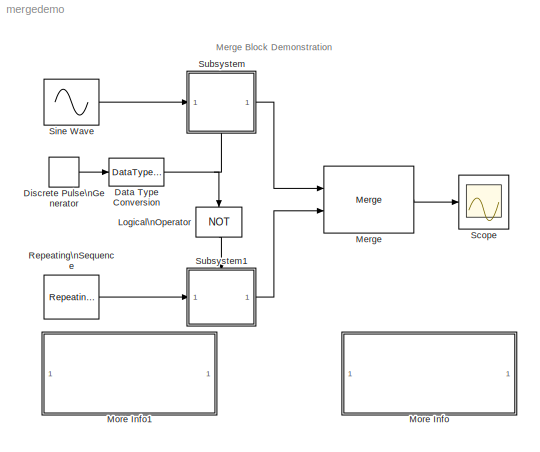
MODEL mergedemo
KIND model
BLOCK [DataTypeConversion] Data Type Conversion
  OutDataTypeMode = boolean
BLOCK [DiscretePulseGenerator] Discrete Pulse\nGenerator
  Ports = [0, 1]
  SampleTime = 5
BLOCK [Logic] Logical\nOperator
  Inputs = 1
  Operator = NOT
  Ports = [1, 1]
BLOCK [Merge] Merge
  Ports = [2, 1]
BLOCK [SubSystem] More Info
  MaskDisplay = disp('Double click here \\nfor a step-by-step\\ntutorial on this model')
  MaskIconFrame = on
  MaskIconOpaque = on
  MaskIconRotate = none
  MaskIconUnits = autoscale
  MinAlgLoopOccurrences = off
  OpenFcn = mergedemoscript
  Ports = []
  PropExecContextAcrossSSBoundary = on
  RTWSystemCode = Auto
  TreatAsAtomicUnit = off
BLOCK [SubSystem] More Info1
  MaskDisplay = disp('Double click\\nhere for general\\nSimulink Help')
  MaskIconFrame = on
  MaskIconOpaque = on
  MaskIconRotate = none
  MaskIconUnits = autoscale
  MinAlgLoopOccurrences = off
  OpenFcn = simcad(bdroot);
  Ports = []
  PropExecContextAcrossSSBoundary = on
  RTWSystemCode = Auto
  TreatAsAtomicUnit = off
BLOCK [Reference] Repeating\nSequence  REF=simulink/Sources/Repeating\nSequence
  Ports = [0, 1]
  ShowPortLabels = on
  SourceBlock = simulink/Sources/Repeating\nSequence
  SourceType = Repeating table
  rep_seq_t = [0 1]
  rep_seq_y = [0 2]
BLOCK [Scope] Scope
  DataFormat = Array
  NumInputPorts = 1
  Ports = [1]
  TickLabels = on
  TimeRange = 20
  YMax = 2
  YMin = -1.5
BLOCK [Sin] Sine Wave
  Frequency = pi
  Ports = [0, 1]
  SampleTime = 0
  SineType = Time based
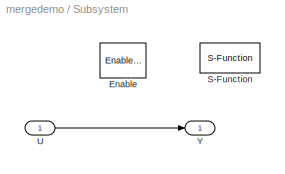
BLOCK [SubSystem] Subsystem
  MinAlgLoopOccurrences = off
  Ports = [1, 1, 1]
  PropExecContextAcrossSSBoundary = on
  RTWSystemCode = Auto
  Tag = MergeExample
  TreatAsAtomicUnit = on
BLOCK [EnablePort] Subsystem/Enable
  Ports = []
  StatesWhenEnabling = reset
BLOCK [S-Function] Subsystem/S-Function
  FunctionName = mergefcn
  Ports = []
BLOCK [Inport] Subsystem/U
  IconDisplay = Port number
  LatchInput = off
  Port = 1
BLOCK [Outport] Subsystem/Y
  IconDisplay = Port number
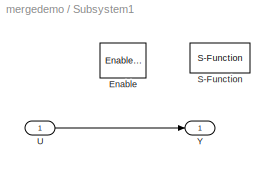
BLOCK [SubSystem] Subsystem1
  MinAlgLoopOccurrences = off
  Ports = [1, 1, 1]
  PropExecContextAcrossSSBoundary = on
  RTWSystemCode = Auto
  Tag = MergeExample
  TreatAsAtomicUnit = on
BLOCK [EnablePort] Subsystem1/Enable
  Ports = []
  StatesWhenEnabling = reset
BLOCK [S-Function] Subsystem1/S-Function
  FunctionName = mergefcn
  Ports = []
BLOCK [Inport] Subsystem1/U
  IconDisplay = Port number
  LatchInput = off
  Port = 1
BLOCK [Outport] Subsystem1/Y
  IconDisplay = Port number
ANNOTATION (root): Merge Block Demonstration
ANNOTATION More Info: Merge Block Demonstration
ANNOTATION More Info: This demonstration shows what happens when the output of two enabled \nsubsystems are merged together. The output of the merge block is the last\n output written to the input ports of the block.\n\nWhile the simulation is running, the subsystem which is green is the one \nwhose signal is displayed on the scope. The coloring of the blocks is \ncontrolled by an S-Function which exists in the enabled...<+120ch>
NET Data Type Conversion:1 -> Logical\nOperator:1, Subsystem:enable
LINE Discrete Pulse\nGenerator:1 -> Data Type Conversion:1
LINE Logical\nOperator:1 -> Subsystem1:enable
LINE Merge:1 -> Scope:1
LINE Repeating\nSequence:1 -> Subsystem1:1
LINE Sine Wave:1 -> Subsystem:1
LINE Subsystem/U:1 -> Subsystem/Y:1
LINE Subsystem1/U:1 -> Subsystem1/Y:1
LINE Subsystem1:1 -> Merge:2
LINE Subsystem:1 -> Merge:1
note: NET lines group one-source signal fan-out (src -> all destinations, sorted); 1:1 wires keep LINE
